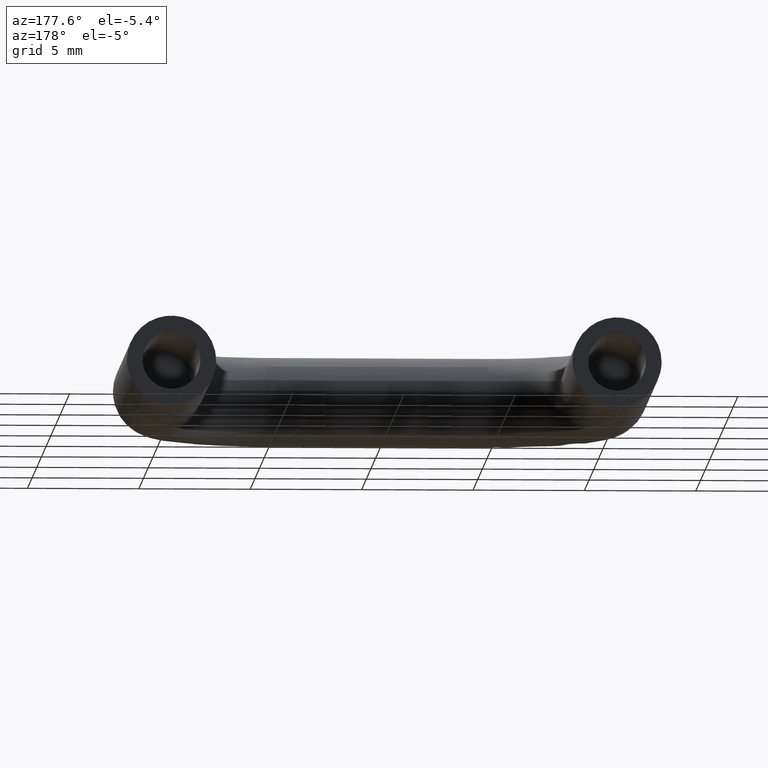
[diagram: clean part render]
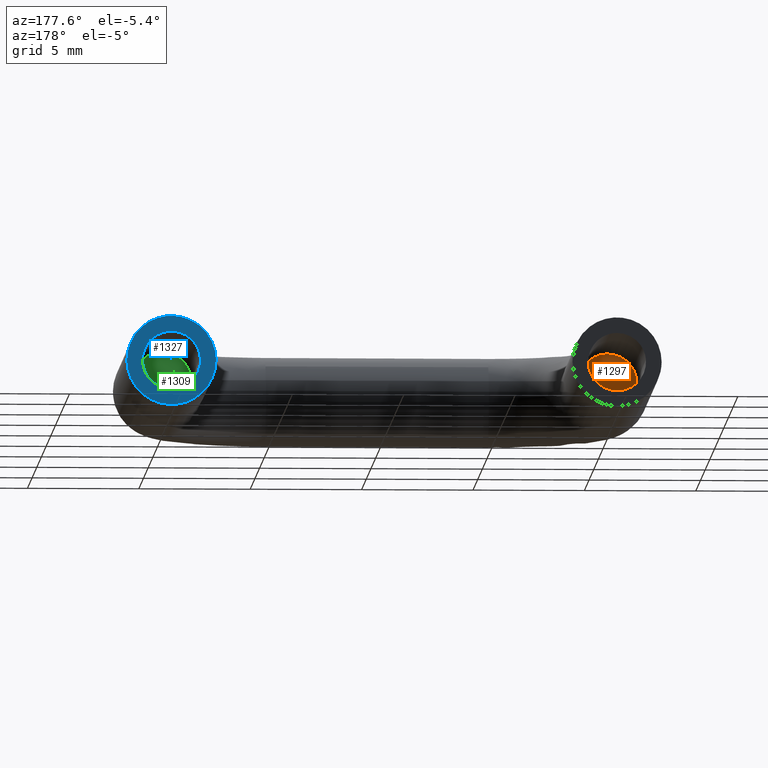
[diagram: same view with three faces highlighted in distinct colors, each labeled with its STEP entity id]
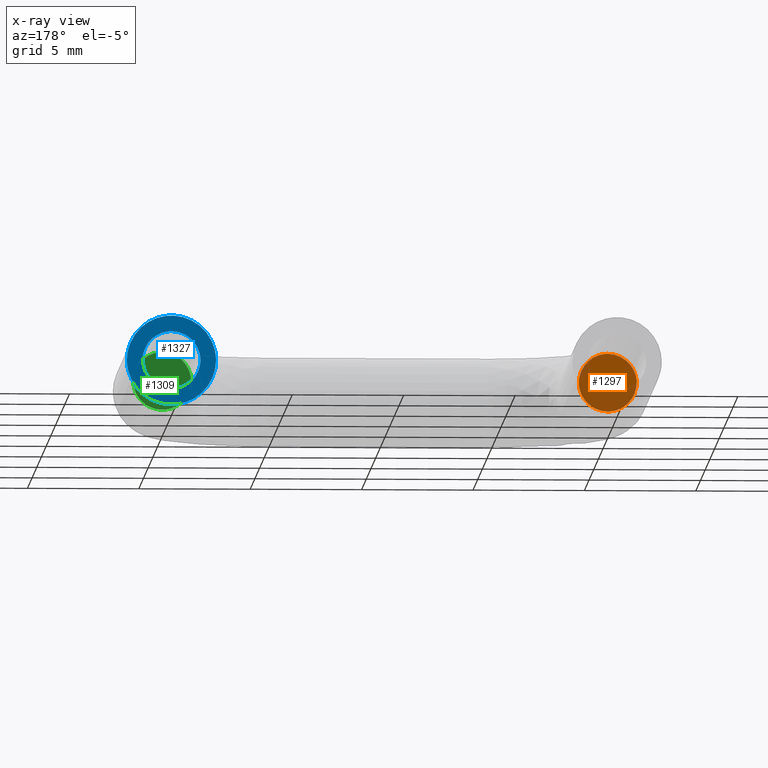
[diagram: x-ray of the same camera — body ghosted, the three highlighted faces saturated]
A machine part, auxiliary view with three faces highlighted in distinct colors.
The next image is the same camera in x-ray (body ghosted, the three faces saturated) — at least one of them is partly hidden behind the body in this view.
Their STEP definitions:

[orange] entity #1297 — the highlighted face is a freeform B-spline surface patch.
#62=CARTESIAN_POINT('',(0.0,-10.0,1.300000000000000));
#63=VERTEX_POINT('',#62);
#64=CARTESIAN_POINT('',(-1.295992599121702,-10.0,0.101995995122767));
#65=VERTEX_POINT('',#64);
#66=CARTESIAN_POINT('',(0.0,-10.0,1.300000000000000));
#67=CARTESIAN_POINT('',(-1.201709181890702,-9.999999999999998,1.300000000000000));
#68=CARTESIAN_POINT('',(-1.295992599121702,-10.0,0.101995995122767));
#76=(BOUNDED_CURVE()B_SPLINE_CURVE(2,(#66,#67,#68),.UNSPECIFIED.,.F.,.U.)B_SPLINE_CURVE_WITH_KNOTS((3,3),(0.0,0.236331520026582),.UNSPECIFIED.)CURVE()GEOMETRIC_REPRESENTATION_ITEM()RATIONAL_B_SPLINE_CURVE((1.0,0.723120401569355,0.969723814030421))REPRESENTATION_ITEM(''));
#77=EDGE_CURVE('',#63,#65,#76,.T.);
#118=CARTESIAN_POINT('',(1.295992599121702,-10.0,-0.101995995122767));
#119=VERTEX_POINT('',#118);
#125=CARTESIAN_POINT('',(1.295992599121702,-10.0,-0.101995995122767));
#126=CARTESIAN_POINT('',(1.300000000000000,-10.0,-0.051076305937973));
#127=CARTESIAN_POINT('',(1.300000000000000,-10.0,0.0));
#128=CARTESIAN_POINT('',(1.300000000000000,-10.000000000000002,1.300000000000000));
#129=CARTESIAN_POINT('',(0.0,-10.0,1.300000000000000));
#137=(BOUNDED_CURVE()B_SPLINE_CURVE(2,(#125,#126,#127,#128,#129),.UNSPECIFIED.,.F.,.U.)B_SPLINE_CURVE_WITH_KNOTS((3,2,3),(0.736331520026582,0.750000000000000,1.0),.UNSPECIFIED.)CURVE()GEOMETRIC_REPRESENTATION_ITEM()RATIONAL_B_SPLINE_CURVE((0.969723814030421,0.983986379617193,1.0,0.707106781186548,1.0))REPRESENTATION_ITEM(''));
#138=EDGE_CURVE('',#119,#63,#137,.T.);
#161=CARTESIAN_POINT('',(0.0,-10.0,-1.300000000000000));
#162=VERTEX_POINT('',#161);
#163=CARTESIAN_POINT('',(-1.295992599121702,-10.0,0.101995995122767));
#164=CARTESIAN_POINT('',(-1.300000000000000,-10.0,0.051076305937973));
#165=CARTESIAN_POINT('',(-1.300000000000000,-10.0,0.0));
#166=CARTESIAN_POINT('',(-1.300000000000000,-10.000000000000002,-1.300000000000000));
#167=CARTESIAN_POINT('',(0.0,-10.0,-1.300000000000000));
#175=(BOUNDED_CURVE()B_SPLINE_CURVE(2,(#163,#164,#165,#166,#167),.UNSPECIFIED.,.F.,.U.)B_SPLINE_CURVE_WITH_KNOTS((3,2,3),(0.236331520026582,0.250000000000000,0.500000000000000),.UNSPECIFIED.)CURVE()GEOMETRIC_REPRESENTATION_ITEM()RATIONAL_B_SPLINE_CURVE((0.969723814030421,0.983986379617193,1.0,0.707106781186548,1.0))REPRESENTATION_ITEM(''));
#176=EDGE_CURVE('',#65,#162,#175,.T.);
#178=CARTESIAN_POINT('',(0.0,-10.0,-1.300000000000000));
#179=CARTESIAN_POINT('',(1.201709181890709,-9.999999999999998,-1.300000000000000));
#180=CARTESIAN_POINT('',(1.295992599121701,-10.0,-0.101995995122767));
#188=(BOUNDED_CURVE()B_SPLINE_CURVE(2,(#178,#179,#180),.UNSPECIFIED.,.F.,.U.)B_SPLINE_CURVE_WITH_KNOTS((3,3),(0.500000000000000,0.736331520026583),.UNSPECIFIED.)CURVE()GEOMETRIC_REPRESENTATION_ITEM()RATIONAL_B_SPLINE_CURVE((1.0,0.723120401569353,0.969723814030423))REPRESENTATION_ITEM(''));
#189=EDGE_CURVE('',#162,#119,#188,.T.);
#1286=CARTESIAN_POINT('',(-1.429473178544879,-10.0,1.429869936857790));
#1287=CARTESIAN_POINT('',(1.429473248282314,-10.0,1.429869936857790));
#1288=CARTESIAN_POINT('',(-1.429473178544879,-10.0,-1.429869867120355));
#1289=CARTESIAN_POINT('',(1.429473248282314,-10.0,-1.429869867120355));
#1290=B_SPLINE_SURFACE_WITH_KNOTS('',1,1,((#1286,#1288),(#1287,#1289)),.UNSPECIFIED.,.F.,.F.,.U.,(2,2),(2,2),(0.0,2.858946426827193),(0.0,2.859739803978145),.UNSPECIFIED.);
#1291=ORIENTED_EDGE('',*,*,#138,.F.);
#1292=ORIENTED_EDGE('',*,*,#189,.F.);
#1293=ORIENTED_EDGE('',*,*,#176,.F.);
#1294=ORIENTED_EDGE('',*,*,#77,.F.);
#1295=EDGE_LOOP('',(#1291,#1292,#1293,#1294));
#1296=FACE_OUTER_BOUND('',#1295,.T.);
#1297=ADVANCED_FACE('',(#1296),#1290,.T.);

[blue] entity #1327 — the highlighted face is a freeform B-spline surface patch.
#261=CARTESIAN_POINT('',(18.704007401662519,5.551115E-016,0.101996005087368));
#262=VERTEX_POINT('',#261);
#268=CARTESIAN_POINT('',(20.0,0.0,1.300000000000000));
#269=VERTEX_POINT('',#268);
#270=CARTESIAN_POINT('',(20.0,0.0,1.300000000000000));
#271=CARTESIAN_POINT('',(18.798290836645794,0.0,1.300000000000000));
#272=CARTESIAN_POINT('',(18.704007401662512,5.551115E-016,0.101996005087368));
#280=(BOUNDED_CURVE()B_SPLINE_CURVE(2,(#270,#271,#272),.UNSPECIFIED.,.F.,.U.)B_SPLINE_CURVE_WITH_KNOTS((3,3),(0.0,0.236331517390490),.UNSPECIFIED.)CURVE()GEOMETRIC_REPRESENTATION_ITEM()RATIONAL_B_SPLINE_CURVE((1.0,0.723120404657728,0.969723808529088))REPRESENTATION_ITEM(''));
#281=EDGE_CURVE('',#269,#262,#280,.T.);
#283=CARTESIAN_POINT('',(21.295992598337481,1.124101E-015,-0.101996005087369));
#284=VERTEX_POINT('',#283);
#285=CARTESIAN_POINT('',(21.295992598337481,1.124101E-015,-0.101996005087369));
#286=CARTESIAN_POINT('',(21.300000000000004,0.0,-0.051076315948816));
#287=CARTESIAN_POINT('',(21.300000000000001,0.0,0.0));
#288=CARTESIAN_POINT('',(21.300000000000008,0.0,1.300000000000000));
#289=CARTESIAN_POINT('',(20.0,0.0,1.300000000000000));
#297=(BOUNDED_CURVE()B_SPLINE_CURVE(2,(#285,#286,#287,#288,#289),.UNSPECIFIED.,.F.,.U.)B_SPLINE_CURVE_WITH_KNOTS((3,2,3),(0.736331517390490,0.750000000000000,1.0),.UNSPECIFIED.)CURVE()GEOMETRIC_REPRESENTATION_ITEM()RATIONAL_B_SPLINE_CURVE((0.969723808529088,0.983986376528820,1.0,0.707106781186548,1.0))REPRESENTATION_ITEM(''));
#298=EDGE_CURVE('',#284,#269,#297,.T.);
#374=CARTESIAN_POINT('',(20.0,0.0,-1.300000000000000));
#375=VERTEX_POINT('',#374);
#376=CARTESIAN_POINT('',(20.0,0.0,-1.300000000000000));
#377=CARTESIAN_POINT('',(21.201709163354217,0.0,-1.300000000000000));
#378=CARTESIAN_POINT('',(21.295992598337481,1.124101E-015,-0.101996005087369));
#386=(BOUNDED_CURVE()B_SPLINE_CURVE(2,(#376,#377,#378),.UNSPECIFIED.,.F.,.U.)B_SPLINE_CURVE_WITH_KNOTS((3,3),(0.500000000000000,0.736331517390491),.UNSPECIFIED.)CURVE()GEOMETRIC_REPRESENTATION_ITEM()RATIONAL_B_SPLINE_CURVE((1.0,0.723120404657727,0.969723808529090))REPRESENTATION_ITEM(''));
#387=EDGE_CURVE('',#375,#284,#386,.T.);
#389=CARTESIAN_POINT('',(18.704007401662519,5.551115E-016,0.101996005087368));
#390=CARTESIAN_POINT('',(18.700000000000003,0.0,0.051076315948816));
#391=CARTESIAN_POINT('',(18.699999999999999,0.0,0.0));
#392=CARTESIAN_POINT('',(18.699999999999999,0.0,-1.300000000000000));
#393=CARTESIAN_POINT('',(20.0,0.0,-1.300000000000000));
#401=(BOUNDED_CURVE()B_SPLINE_CURVE(2,(#389,#390,#391,#392,#393),.UNSPECIFIED.,.F.,.U.)B_SPLINE_CURVE_WITH_KNOTS((3,2,3),(0.236331517390490,0.250000000000000,0.500000000000000),.UNSPECIFIED.)CURVE()GEOMETRIC_REPRESENTATION_ITEM()RATIONAL_B_SPLINE_CURVE((0.969723808529089,0.983986376528820,1.0,0.707106781186548,1.0))REPRESENTATION_ITEM(''));
#402=EDGE_CURVE('',#262,#375,#401,.T.);
#475=CARTESIAN_POINT('',(18.754970951069641,7.008283E-016,1.565216492156750));
#476=VERTEX_POINT('',#475);
#482=CARTESIAN_POINT('',(18.0,1.734723E-015,0.0));
#483=VERTEX_POINT('',#482);
#484=CARTESIAN_POINT('',(18.754970951069637,7.008283E-016,1.565216492156751));
#485=CARTESIAN_POINT('',(18.0,1.734723E-015,0.964685834991690));
#486=CARTESIAN_POINT('',(18.0,1.734723E-015,0.0));
#494=(BOUNDED_CURVE()B_SPLINE_CURVE(2,(#484,#485,#486),.UNSPECIFIED.,.F.,.U.)B_SPLINE_CURVE_WITH_KNOTS((3,3),(0.857863833997858,1.0),.UNSPECIFIED.)CURVE()GEOMETRIC_REPRESENTATION_ITEM()RATIONAL_B_SPLINE_CURVE((0.856305632582953,0.833477123319318,1.0))REPRESENTATION_ITEM(''));
#495=EDGE_CURVE('',#476,#483,#494,.T.);
#497=CARTESIAN_POINT('',(21.245029048930359,7.008283E-016,-1.565216492156754));
#498=VERTEX_POINT('',#497);
#499=CARTESIAN_POINT('',(18.0,1.734723E-015,0.0));
#500=CARTESIAN_POINT('',(18.000000000000007,1.734723E-015,-2.000000000000000));
#501=CARTESIAN_POINT('',(20.0,1.734723E-015,-2.0));
#502=CARTESIAN_POINT('',(20.698430945221016,1.734723E-015,-2.0));
#503=CARTESIAN_POINT('',(21.245029048930355,7.008283E-016,-1.565216492156753));
#511=(BOUNDED_CURVE()B_SPLINE_CURVE(2,(#499,#500,#501,#502,#503),.UNSPECIFIED.,.F.,.U.)B_SPLINE_CURVE_WITH_KNOTS((3,2,3),(0.0,0.250000000000000,0.357863833997858),.UNSPECIFIED.)CURVE()GEOMETRIC_REPRESENTATION_ITEM()RATIONAL_B_SPLINE_CURVE((1.0,0.707106781186548,1.0,0.873629657867230,0.856305632582953))REPRESENTATION_ITEM(''));
#512=EDGE_CURVE('',#483,#498,#511,.T.);
#556=CARTESIAN_POINT('',(22.0,1.734723E-015,0.0));
#557=VERTEX_POINT('',#556);
#558=CARTESIAN_POINT('',(21.245029048930355,7.008283E-016,-1.565216492156753));
#559=CARTESIAN_POINT('',(22.000000000000007,1.734723E-015,-0.964685834991696));
#560=CARTESIAN_POINT('',(22.0,1.734723E-015,0.0));
#568=(BOUNDED_CURVE()B_SPLINE_CURVE(2,(#558,#559,#560),.UNSPECIFIED.,.F.,.U.)B_SPLINE_CURVE_WITH_KNOTS((3,3),(0.357863833997858,0.500000000000000),.UNSPECIFIED.)CURVE()GEOMETRIC_REPRESENTATION_ITEM()RATIONAL_B_SPLINE_CURVE((0.856305632582953,0.833477123319317,1.0))REPRESENTATION_ITEM(''));
#569=EDGE_CURVE('',#498,#557,#568,.T.);
#571=CARTESIAN_POINT('',(22.0,1.734723E-015,0.0));
#572=CARTESIAN_POINT('',(22.000000000000007,1.734723E-015,2.000000000000000));
#573=CARTESIAN_POINT('',(20.0,1.734723E-015,2.0));
#574=CARTESIAN_POINT('',(19.301569054778987,1.734723E-015,2.0));
#575=CARTESIAN_POINT('',(18.754970951069637,7.008283E-016,1.565216492156751));
#583=(BOUNDED_CURVE()B_SPLINE_CURVE(2,(#571,#572,#573,#574,#575),.UNSPECIFIED.,.F.,.U.)B_SPLINE_CURVE_WITH_KNOTS((3,2,3),(0.500000000000000,0.750000000000000,0.857863833997858),.UNSPECIFIED.)CURVE()GEOMETRIC_REPRESENTATION_ITEM()RATIONAL_B_SPLINE_CURVE((1.0,0.707106781186548,1.0,0.873629657867230,0.856305632582953))REPRESENTATION_ITEM(''));
#584=EDGE_CURVE('',#557,#476,#583,.T.);
#1310=CARTESIAN_POINT('',(22.199799992247218,1.734723E-015,-2.199799198391983));
#1311=CARTESIAN_POINT('',(17.800199900464420,1.734723E-015,-2.199799198391983));
#1312=CARTESIAN_POINT('',(22.199799992247229,1.734723E-015,2.199799162629196));
#1313=CARTESIAN_POINT('',(17.800199900464420,1.734723E-015,2.199799162629196));
#1314=B_SPLINE_SURFACE_WITH_KNOTS('',1,1,((#1310,#1312),(#1311,#1313)),.UNSPECIFIED.,.F.,.F.,.U.,(2,2),(2,2),(0.0,4.399600091782805),(0.0,4.399598361021179),.UNSPECIFIED.);
#1315=ORIENTED_EDGE('',*,*,#495,.F.);
#1316=ORIENTED_EDGE('',*,*,#584,.F.);
#1317=ORIENTED_EDGE('',*,*,#569,.F.);
#1318=ORIENTED_EDGE('',*,*,#512,.F.);
#1319=EDGE_LOOP('',(#1315,#1316,#1317,#1318));
#1320=FACE_OUTER_BOUND('',#1319,.T.);
#1321=ORIENTED_EDGE('',*,*,#387,.T.);
#1322=ORIENTED_EDGE('',*,*,#298,.T.);
#1323=ORIENTED_EDGE('',*,*,#281,.T.);
#1324=ORIENTED_EDGE('',*,*,#402,.T.);
#1325=EDGE_LOOP('',(#1321,#1322,#1323,#1324));
#1326=FACE_BOUND('',#1325,.T.);
#1327=ADVANCED_FACE('',(#1320,#1326),#1314,.T.);

[green] entity #1309 — the highlighted face is a freeform B-spline surface patch.
#244=CARTESIAN_POINT('',(20.0,-10.0,1.300000000000000));
#245=VERTEX_POINT('',#244);
#246=CARTESIAN_POINT('',(18.704007400878300,-10.0,0.101995995122767));
#247=VERTEX_POINT('',#246);
#248=CARTESIAN_POINT('',(20.0,-10.0,1.300000000000000));
#249=CARTESIAN_POINT('',(18.798290818109297,-10.0,1.300000000000000));
#250=CARTESIAN_POINT('',(18.704007400878300,-10.0,0.101995995122767));
#258=(BOUNDED_CURVE()B_SPLINE_CURVE(2,(#248,#249,#250),.UNSPECIFIED.,.F.,.U.)B_SPLINE_CURVE_WITH_KNOTS((3,3),(0.0,0.236331520026582),.UNSPECIFIED.)CURVE()GEOMETRIC_REPRESENTATION_ITEM()RATIONAL_B_SPLINE_CURVE((1.0,0.723120401569354,0.969723814030421))REPRESENTATION_ITEM(''));
#259=EDGE_CURVE('',#245,#247,#258,.T.);
#300=CARTESIAN_POINT('',(21.295992599121700,-10.0,-0.101995995122767));
#301=VERTEX_POINT('',#300);
#307=CARTESIAN_POINT('',(21.295992599121700,-10.0,-0.101995995122767));
#308=CARTESIAN_POINT('',(21.299999999999997,-10.0,-0.051076305937973));
#309=CARTESIAN_POINT('',(21.300000000000001,-10.0,0.0));
#310=CARTESIAN_POINT('',(21.300000000000008,-10.000000000000002,1.300000000000000));
#311=CARTESIAN_POINT('',(20.0,-10.0,1.300000000000000));
#319=(BOUNDED_CURVE()B_SPLINE_CURVE(2,(#307,#308,#309,#310,#311),.UNSPECIFIED.,.F.,.U.)B_SPLINE_CURVE_WITH_KNOTS((3,2,3),(0.736331520026582,0.750000000000000,1.0),.UNSPECIFIED.)CURVE()GEOMETRIC_REPRESENTATION_ITEM()RATIONAL_B_SPLINE_CURVE((0.969723814030421,0.983986379617193,1.0,0.707106781186548,1.0))REPRESENTATION_ITEM(''));
#320=EDGE_CURVE('',#301,#245,#319,.T.);
#343=CARTESIAN_POINT('',(20.0,-10.0,-1.300000000000000));
#344=VERTEX_POINT('',#343);
#345=CARTESIAN_POINT('',(18.704007400878293,-10.0,0.101995995122767));
#346=CARTESIAN_POINT('',(18.700000000000006,-9.999999999999998,0.051076305937973));
#347=CARTESIAN_POINT('',(18.699999999999999,-10.0,0.0));
#348=CARTESIAN_POINT('',(18.699999999999999,-10.000000000000002,-1.300000000000000));
#349=CARTESIAN_POINT('',(20.0,-10.0,-1.300000000000000));
#357=(BOUNDED_CURVE()B_SPLINE_CURVE(2,(#345,#346,#347,#348,#349),.UNSPECIFIED.,.F.,.U.)B_SPLINE_CURVE_WITH_KNOTS((3,2,3),(0.236331520026582,0.250000000000000,0.500000000000000),.UNSPECIFIED.)CURVE()GEOMETRIC_REPRESENTATION_ITEM()RATIONAL_B_SPLINE_CURVE((0.969723814030421,0.983986379617193,1.0,0.707106781186548,1.0))REPRESENTATION_ITEM(''));
#358=EDGE_CURVE('',#247,#344,#357,.T.);
#360=CARTESIAN_POINT('',(20.0,-10.0,-1.300000000000000));
#361=CARTESIAN_POINT('',(21.201709181890713,-9.999999999999998,-1.300000000000000));
#362=CARTESIAN_POINT('',(21.295992599121707,-10.0,-0.101995995122767));
#370=(BOUNDED_CURVE()B_SPLINE_CURVE(2,(#360,#361,#362),.UNSPECIFIED.,.F.,.U.)B_SPLINE_CURVE_WITH_KNOTS((3,3),(0.500000000000000,0.736331520026583),.UNSPECIFIED.)CURVE()GEOMETRIC_REPRESENTATION_ITEM()RATIONAL_B_SPLINE_CURVE((1.0,0.723120401569353,0.969723814030423))REPRESENTATION_ITEM(''));
#371=EDGE_CURVE('',#344,#301,#370,.T.);
#1298=CARTESIAN_POINT('',(18.570527337461002,-10.0,1.429869936857789));
#1299=CARTESIAN_POINT('',(21.429472639293191,-10.0,1.429869936857789));
#1300=CARTESIAN_POINT('',(18.570527337461002,-10.0,-1.429869867120355));
#1301=CARTESIAN_POINT('',(21.429472639293191,-10.0,-1.429869867120355));
#1302=B_SPLINE_SURFACE_WITH_KNOTS('',1,1,((#1298,#1300),(#1299,#1301)),.UNSPECIFIED.,.F.,.F.,.U.,(2,2),(2,2),(0.0,2.858945301832193),(0.0,2.859739803978145),.UNSPECIFIED.);
#1303=ORIENTED_EDGE('',*,*,#320,.F.);
#1304=ORIENTED_EDGE('',*,*,#371,.F.);
#1305=ORIENTED_EDGE('',*,*,#358,.F.);
#1306=ORIENTED_EDGE('',*,*,#259,.F.);
#1307=EDGE_LOOP('',(#1303,#1304,#1305,#1306));
#1308=FACE_OUTER_BOUND('',#1307,.T.);
#1309=ADVANCED_FACE('',(#1308),#1302,.T.);